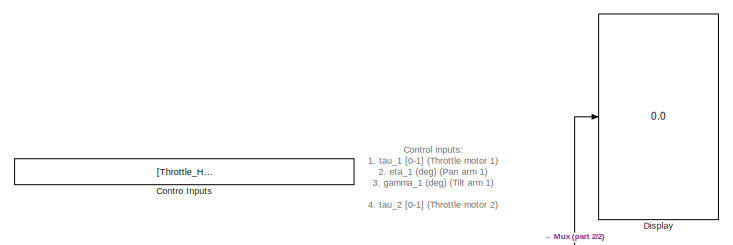
[diagram: root canvas - part 1/2, top left region]
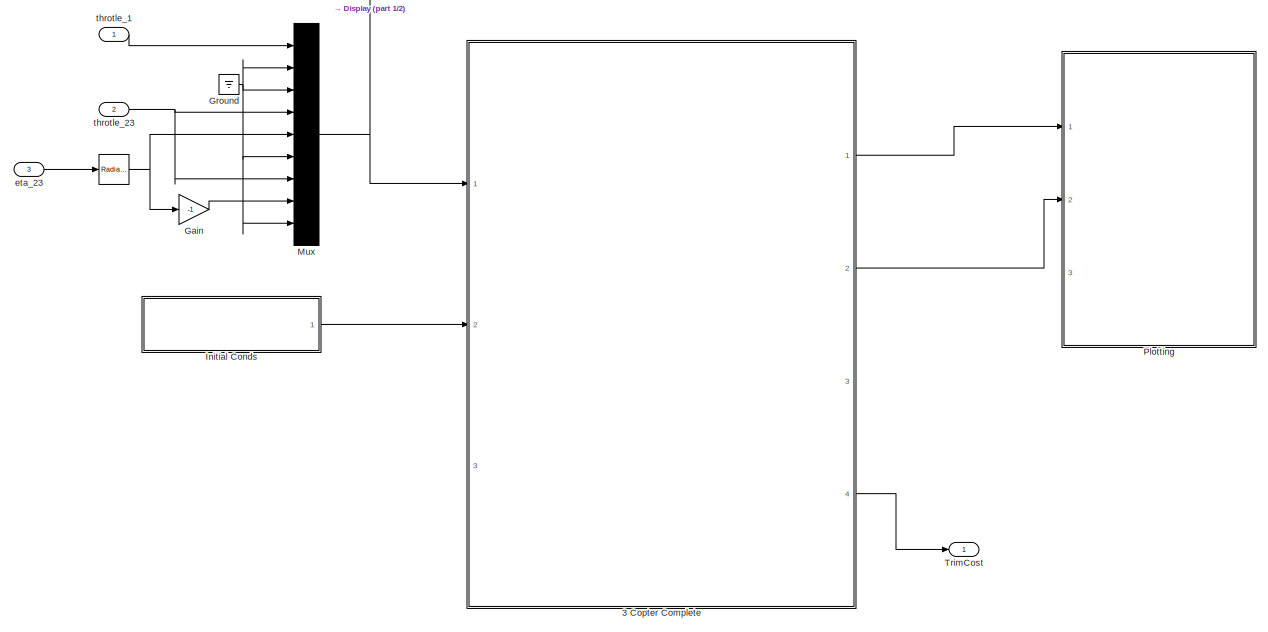
[diagram: root canvas - part 2/2, full width, middle band]
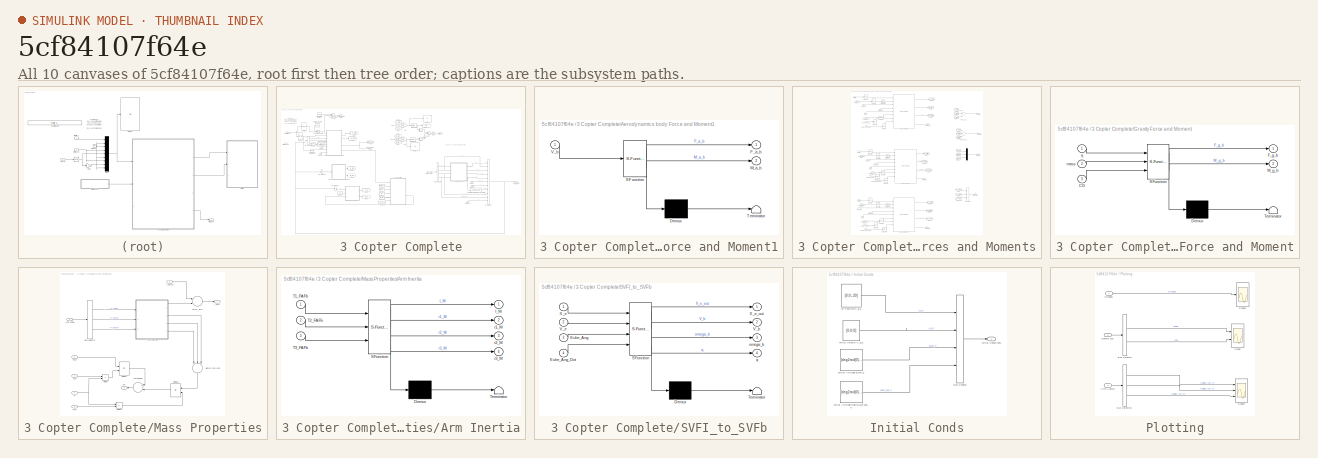
[diagram: thumbnail index - all 10 canvases of the model, root first then tree order]
MODEL slx_5cf84107f64e
KIND model
BLOCK [Reference]    REF=simulink_extras/Transformations/Radians
to Degrees
  Ports = [1, 1]
  SourceBlock = simulink_extras/Transformations/Radians\nto Degrees
  SourceType = RadiansToDegrees
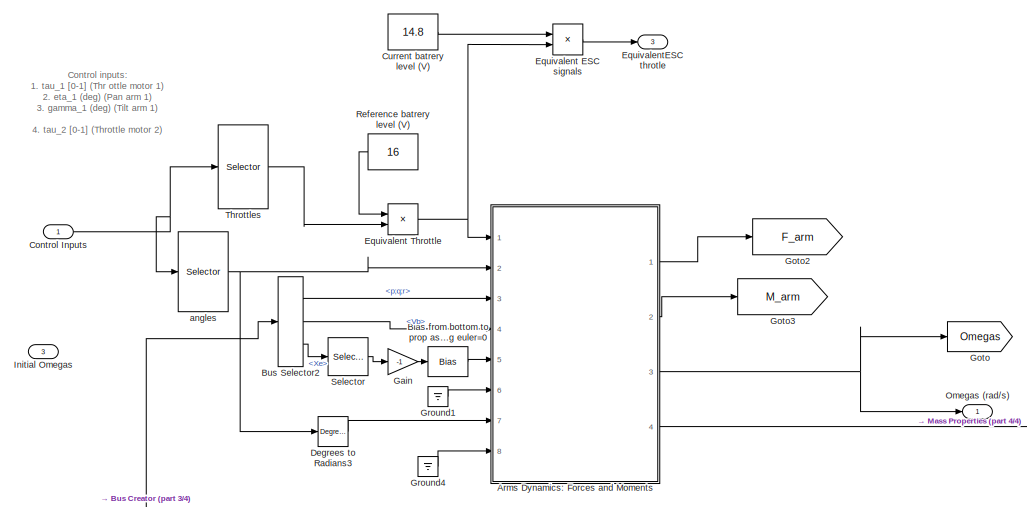
[diagram: 3 Copter Complete - part 1/4, top left region]
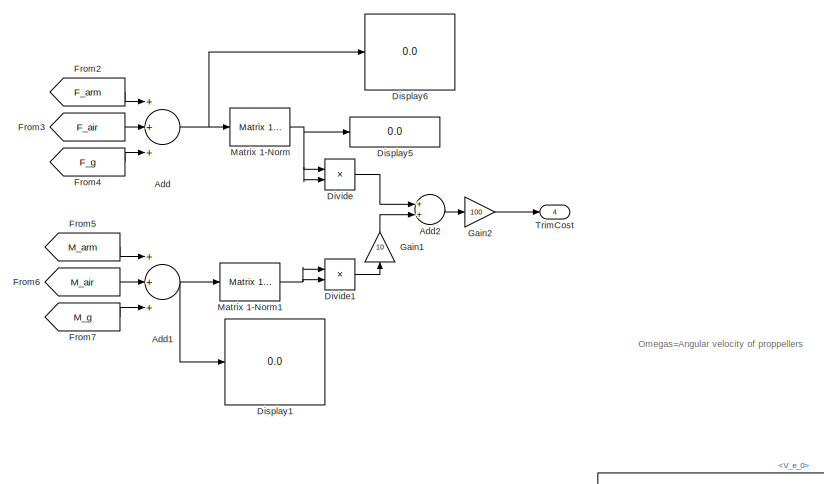
[diagram: 3 Copter Complete - part 2/4, top center region]
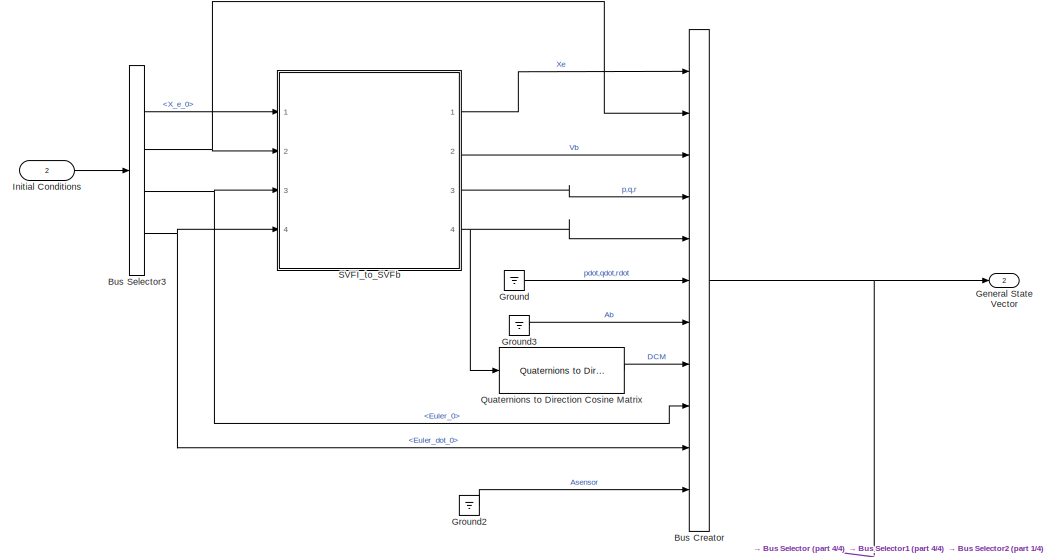
[diagram: 3 Copter Complete - part 3/4, middle right region]
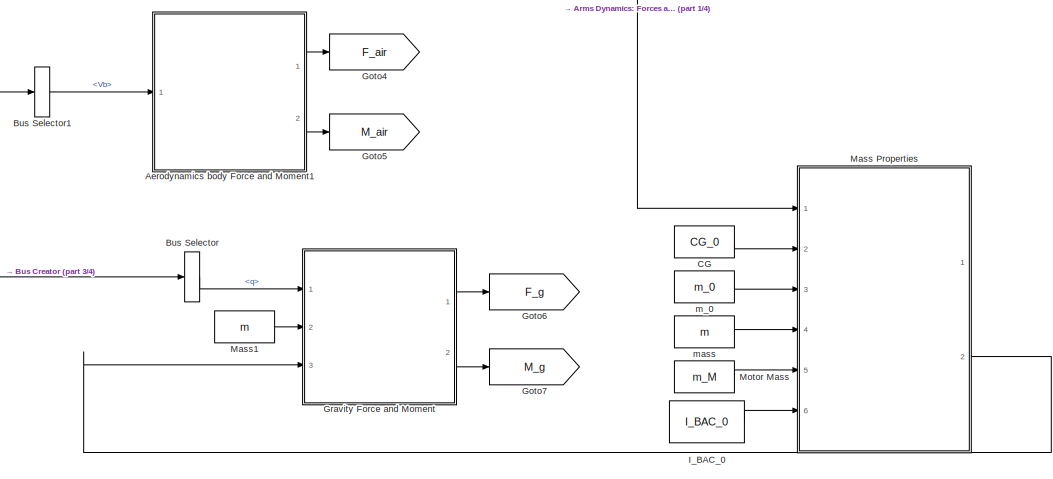
[diagram: 3 Copter Complete - part 4/4, central region]
BLOCK [SubSystem] 3 Copter Complete
  Ports = [3, 4]
  RequestExecContextInheritance = off
  TreatAsAtomicUnit = on
BLOCK [Sum] 3 Copter Complete/Add
  InputSameDT = off
  Inputs = +++
  OutDataTypeStr = Inherit: Inherit via internal rule
  Ports = [3, 1]
  SaturateOnIntegerOverflow = off
BLOCK [Sum] 3 Copter Complete/Add1
  InputSameDT = off
  Inputs = +++
  OutDataTypeStr = Inherit: Inherit via internal rule
  Ports = [3, 1]
  SaturateOnIntegerOverflow = off
BLOCK [Sum] 3 Copter Complete/Add2
  InputSameDT = off
  OutDataTypeStr = Inherit: Inherit via internal rule
  Ports = [2, 1]
  SaturateOnIntegerOverflow = off
BLOCK [SubSystem] 3 Copter Complete/Aerodynamics body Force and Moment1
  ErrorFcn = Stateflow.Translate.translate
  PermitHierarchicalResolution = ExplicitOnly
  Ports = [1, 2]
  RequestExecContextInheritance = off
  SFBlockType = MATLAB Function
  TreatAsAtomicUnit = on
BLOCK [Demux] 3 Copter Complete/Aerodynamics body Force and Moment1/ Demux 
  Outputs = 1
  Ports = [1, 1]
BLOCK [S-Function] 3 Copter Complete/Aerodynamics body Force and Moment1/ SFunction 
  EnableBusSupport = off
  FunctionName = sf_sfun
  Parameters = A_x,A_y,A_z,C_x,C_y,C_z,rho
  PortCounts = [1 3]
  Ports = [1, 3]
  Tag = Stateflow S-Function Trim_Model 5
BLOCK [Terminator] 3 Copter Complete/Aerodynamics body Force and Moment1/ Terminator 
BLOCK [Outport] 3 Copter Complete/Aerodynamics body Force and Moment1/F_a_b
  IconDisplay = Port number
BLOCK [Outport] 3 Copter Complete/Aerodynamics body Force and Moment1/M_a_b
  IconDisplay = Port number
  Port = 2
BLOCK [Inport] 3 Copter Complete/Aerodynamics body Force and Moment1/V_b
  IconDisplay = Port number
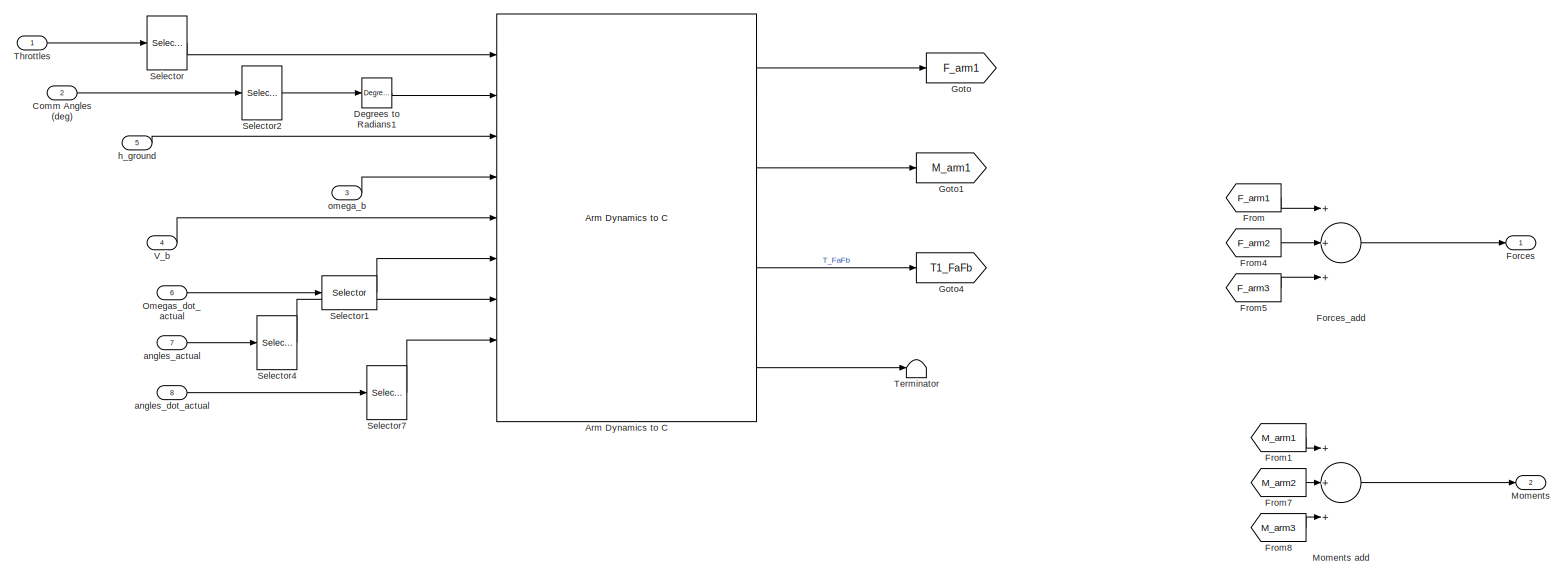
[diagram: 3 Copter Complete/Arms Dynamics: Forces and Moments - part 1/3, full width, top band]
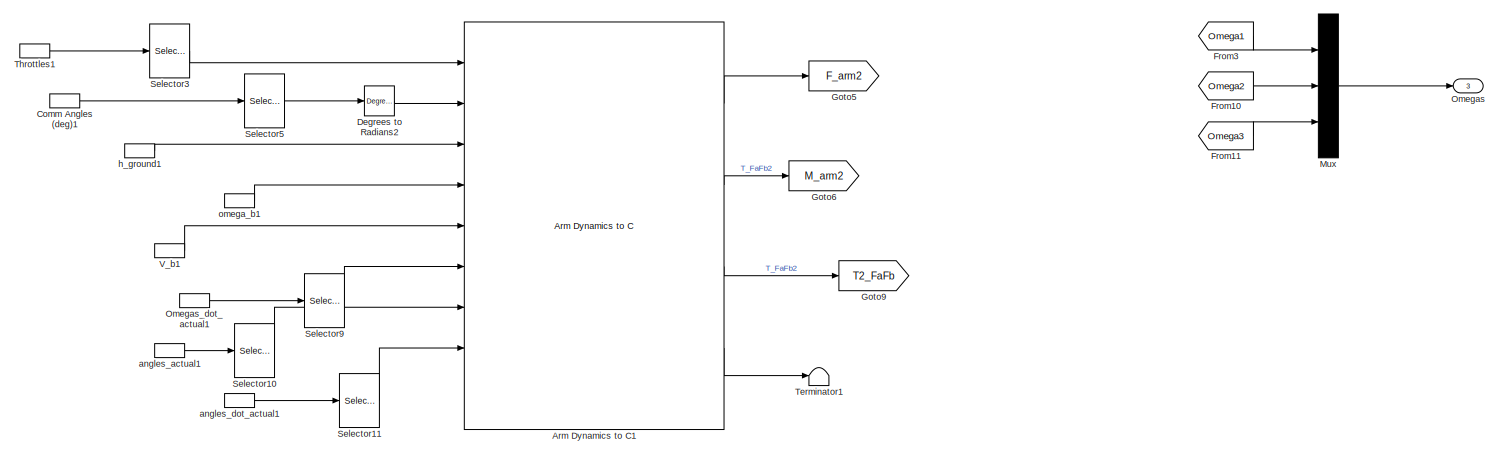
[diagram: 3 Copter Complete/Arms Dynamics: Forces and Moments - part 2/3, full width, middle band]
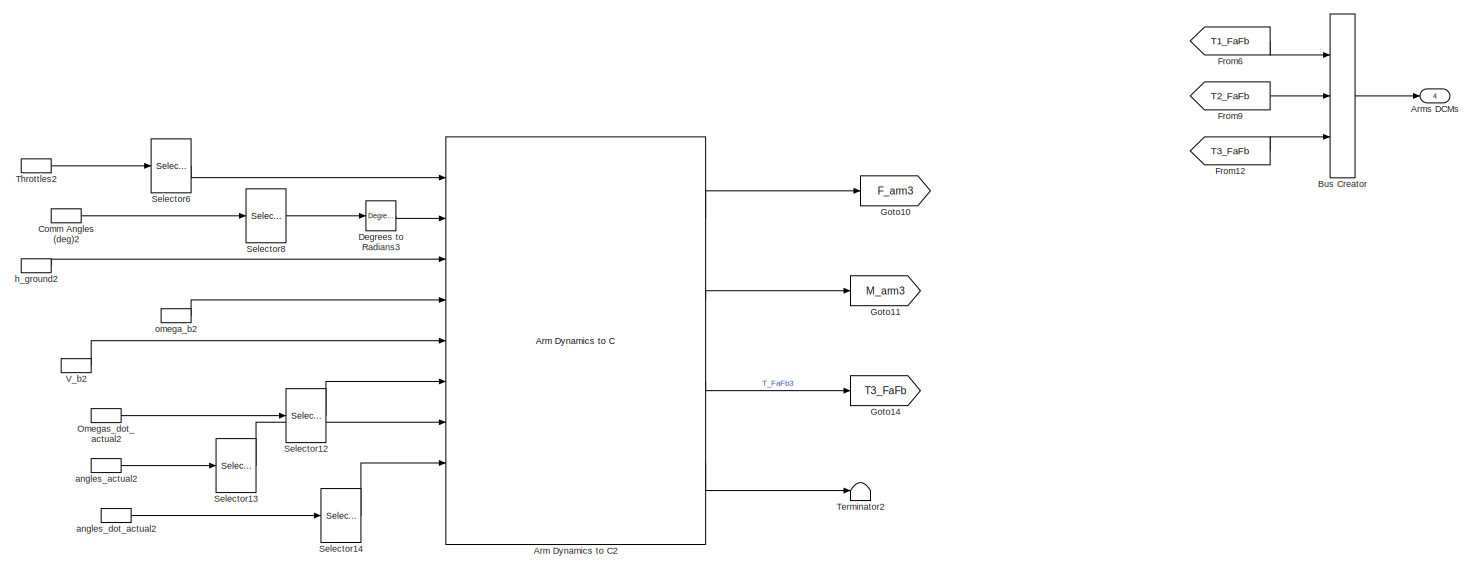
[diagram: 3 Copter Complete/Arms Dynamics: Forces and Moments - part 3/3, full width, bottom band]
BLOCK [SubSystem] 3 Copter Complete/Arms Dynamics: Forces and Moments
  Ports = [8, 4]
  RequestExecContextInheritance = off
BLOCK [Reference] 3 Copter Complete/Arms Dynamics: Forces and Moments/Arm Dynamics  to C  REF=XXCopter_C/Arm Dynamics  to C
  Arm_axis = [l_arm;0;0]
  J_FA = J_FA
  J_T = J_T
  Ports = [9, 4]
  Rot_sign = Rotation_sign(1)
  SourceBlock = XXCopter_C/Arm Dynamics  to C
  SourceType = Arm dynamics, kinematics, forces and moments
  arm_hub_pos = l*[1;0;0]
  arm_num = 1
  eta_dir = [1;0;0]
  eta_inf_lim = deg2rad(-180)
  eta_sup_lim = deg2rad(180)
  gamma_dir = [0;1;0]
  gamma_inf_lim = deg2rad(-90)
  gamma_sup_lim = deg2rad(30)
  h = h
  omega_n = 40
  switch_val = direct_feedforward
  xi = 0.8
BLOCK [Reference] 3 Copter Complete/Arms Dynamics: Forces and Moments/Arm Dynamics  to C1  REF=XXCopter_C/Arm Dynamics  to C
  Arm_axis = [0;l_arm;0]
  J_FA = J_FA
  J_T = J_T
  Ports = [9, 4]
  Rot_sign = Rotation_sign(2)
  SourceBlock = XXCopter_C/Arm Dynamics  to C
  SourceType = Arm dynamics, kinematics, forces and moments
  arm_hub_pos = l*[-1/2;sqrt(3)/2;0]
  arm_num = 2
  eta_dir = [0;1;0]
  eta_inf_lim = deg2rad(-180)
  eta_sup_lim = deg2rad(180)
  gamma_dir = [1;0;0]
  gamma_inf_lim = deg2rad(-30)
  gamma_sup_lim = deg2rad(90)
  h = h
  omega_n = 40
  switch_val = direct_feedforward
  xi = 0.8
BLOCK [Reference] 3 Copter Complete/Arms Dynamics: Forces and Moments/Arm Dynamics  to C2  REF=XXCopter_C/Arm Dynamics  to C
  Arm_axis = [0;-l_arm;0]
  J_FA = J_FA
  J_T = J_T
  Ports = [9, 4]
  Rot_sign = Rotation_sign(3)
  SourceBlock = XXCopter_C/Arm Dynamics  to C
  SourceType = Arm dynamics, kinematics, forces and moments
  arm_hub_pos = l*[-1/2;-sqrt(3)/2;0]
  arm_num = 3
  eta_dir = [0;1;0]
  eta_inf_lim = deg2rad(-180)
  eta_sup_lim = deg2rad(180)
  gamma_dir = [1;0;0]
  gamma_inf_lim = deg2rad(-90)
  gamma_sup_lim = deg2rad(30)
  h = h
  omega_n = 40
  switch_val = direct_feedforward
  xi = 0.8
BLOCK [Outport] 3 Copter Complete/Arms Dynamics: Forces and Moments/Arms DCMs
  IconDisplay = Port number
  Port = 4
BLOCK [BusCreator] 3 Copter Complete/Arms Dynamics: Forces and Moments/Bus Creator
  DisplayOption = bar
  Inputs = 3
  Ports = [3, 1]
BLOCK [Inport] 3 Copter Complete/Arms Dynamics: Forces and Moments/Comm Angles (deg)
  IconDisplay = Port number
  Port = 2
BLOCK [InportShadow] 3 Copter Complete/Arms Dynamics: Forces and Moments/Comm Angles (deg)1
  IconDisplay = Port number
  Port = 2
BLOCK [InportShadow] 3 Copter Complete/Arms Dynamics: Forces and Moments/Comm Angles (deg)2
  IconDisplay = Port number
  Port = 2
BLOCK [Reference] 3 Copter Complete/Arms Dynamics: Forces and Moments/Degrees to Radians1  REF=simulink_extras/Transformations/Degrees to
Radians
  Ports = [1, 1]
  SourceBlock = simulink_extras/Transformations/Degrees to\nRadians
  SourceType = DegreesToRadians
BLOCK [Reference] 3 Copter Complete/Arms Dynamics: Forces and Moments/Degrees to Radians2  REF=simulink_extras/Transformations/Degrees to
Radians
  Ports = [1, 1]
  SourceBlock = simulink_extras/Transformations/Degrees to\nRadians
  SourceType = DegreesToRadians
BLOCK [Reference] 3 Copter Complete/Arms Dynamics: Forces and Moments/Degrees to Radians3  REF=simulink_extras/Transformations/Degrees to
Radians
  Ports = [1, 1]
  SourceBlock = simulink_extras/Transformations/Degrees to\nRadians
  SourceType = DegreesToRadians
BLOCK [Outport] 3 Copter Complete/Arms Dynamics: Forces and Moments/Forces
  IconDisplay = Port number
BLOCK [Sum] 3 Copter Complete/Arms Dynamics: Forces and Moments/Forces_add
  InputSameDT = off
  Inputs = +++
  OutDataTypeStr = Inherit: Inherit via internal rule
  Ports = [3, 1]
  SaturateOnIntegerOverflow = off
BLOCK [From] 3 Copter Complete/Arms Dynamics: Forces and Moments/From
  GotoTag = F_arm1
BLOCK [From] 3 Copter Complete/Arms Dynamics: Forces and Moments/From1
  GotoTag = M_arm1
BLOCK [From] 3 Copter Complete/Arms Dynamics: Forces and Moments/From10
  GotoTag = Omega2
BLOCK [From] 3 Copter Complete/Arms Dynamics: Forces and Moments/From11
  GotoTag = Omega3
BLOCK [From] 3 Copter Complete/Arms Dynamics: Forces and Moments/From12
  GotoTag = T3_FaFb
BLOCK [From] 3 Copter Complete/Arms Dynamics: Forces and Moments/From3
  GotoTag = Omega1
BLOCK [From] 3 Copter Complete/Arms Dynamics: Forces and Moments/From4
  GotoTag = F_arm2
BLOCK [From] 3 Copter Complete/Arms Dynamics: Forces and Moments/From5
  GotoTag = F_arm3
BLOCK [From] 3 Copter Complete/Arms Dynamics: Forces and Moments/From6
  GotoTag = T1_FaFb
BLOCK [From] 3 Copter Complete/Arms Dynamics: Forces and Moments/From7
  GotoTag = M_arm2
BLOCK [From] 3 Copter Complete/Arms Dynamics: Forces and Moments/From8
  GotoTag = M_arm3
BLOCK [From] 3 Copter Complete/Arms Dynamics: Forces and Moments/From9
  GotoTag = T2_FaFb
BLOCK [Goto] 3 Copter Complete/Arms Dynamics: Forces and Moments/Goto
  GotoTag = F_arm1
BLOCK [Goto] 3 Copter Complete/Arms Dynamics: Forces and Moments/Goto1
  GotoTag = M_arm1
BLOCK [Goto] 3 Copter Complete/Arms Dynamics: Forces and Moments/Goto10
  GotoTag = F_arm3
BLOCK [Goto] 3 Copter Complete/Arms Dynamics: Forces and Moments/Goto11
  GotoTag = M_arm3
BLOCK [Goto] 3 Copter Complete/Arms Dynamics: Forces and Moments/Goto14
  GotoTag = T3_FaFb
BLOCK [Goto] 3 Copter Complete/Arms Dynamics: Forces and Moments/Goto4
  GotoTag = T1_FaFb
BLOCK [Goto] 3 Copter Complete/Arms Dynamics: Forces and Moments/Goto5
  GotoTag = F_arm2
BLOCK [Goto] 3 Copter Complete/Arms Dynamics: Forces and Moments/Goto6
  GotoTag = M_arm2
BLOCK [Goto] 3 Copter Complete/Arms Dynamics: Forces and Moments/Goto9
  GotoTag = T2_FaFb
BLOCK [Outport] 3 Copter Complete/Arms Dynamics: Forces and Moments/Moments
  IconDisplay = Port number
  Port = 2
BLOCK [Sum] 3 Copter Complete/Arms Dynamics: Forces and Moments/Moments add
  InputSameDT = off
  Inputs = +++
  OutDataTypeStr = Inherit: Inherit via internal rule
  Ports = [3, 1]
  SaturateOnIntegerOverflow = off
BLOCK [Mux] 3 Copter Complete/Arms Dynamics: Forces and Moments/Mux
  DisplayOption = bar
  Inputs = 3
  Ports = [3, 1]
BLOCK [Outport] 3 Copter Complete/Arms Dynamics: Forces and Moments/Omegas
  IconDisplay = Port number
  Port = 3
BLOCK [Inport] 3 Copter Complete/Arms Dynamics: Forces and Moments/Omegas_dot_actual
  IconDisplay = Port number
  Port = 6
BLOCK [InportShadow] 3 Copter Complete/Arms Dynamics: Forces and Moments/Omegas_dot_actual1
  IconDisplay = Port number
  Port = 6
BLOCK [InportShadow] 3 Copter Complete/Arms Dynamics: Forces and Moments/Omegas_dot_actual2
  IconDisplay = Port number
  Port = 6
BLOCK [Selector] 3 Copter Complete/Arms Dynamics: Forces and Moments/Selector
  IndexMode = Zero-based
  Indices = 0
  InputPortWidth = 3
  Ports = [1, 1]
BLOCK [Selector] 3 Copter Complete/Arms Dynamics: Forces and Moments/Selector1
  IndexMode = Zero-based
  Indices = 0
  InputPortWidth = 3
  Ports = [1, 1]
BLOCK [Selector] 3 Copter Complete/Arms Dynamics: Forces and Moments/Selector10
  IndexMode = Zero-based
  Indices = [2,3]
  InputPortWidth = 6
  Ports = [1, 1]
BLOCK [Selector] 3 Copter Complete/Arms Dynamics: Forces and Moments/Selector11
  IndexMode = Zero-based
  Indices = [2,3]
  InputPortWidth = 6
  Ports = [1, 1]
BLOCK [Selector] 3 Copter Complete/Arms Dynamics: Forces and Moments/Selector12
  IndexMode = Zero-based
  Indices = 2
  InputPortWidth = 3
  Ports = [1, 1]
BLOCK [Selector] 3 Copter Complete/Arms Dynamics: Forces and Moments/Selector13
  IndexMode = Zero-based
  Indices = [4,5]
  InputPortWidth = 6
  Ports = [1, 1]
BLOCK [Selector] 3 Copter Complete/Arms Dynamics: Forces and Moments/Selector14
  IndexMode = Zero-based
  Indices = [4,5]
  InputPortWidth = 6
  Ports = [1, 1]
BLOCK [Selector] 3 Copter Complete/Arms Dynamics: Forces and Moments/Selector2
  IndexMode = Zero-based
  Indices = [0,1]
  InputPortWidth = 6
  Ports = [1, 1]
BLOCK [Selector] 3 Copter Complete/Arms Dynamics: Forces and Moments/Selector3
  IndexMode = Zero-based
  InputPortWidth = 3
  Ports = [1, 1]
BLOCK [Selector] 3 Copter Complete/Arms Dynamics: Forces and Moments/Selector4
  IndexMode = Zero-based
  Indices = [0,1]
  InputPortWidth = 6
  Ports = [1, 1]
BLOCK [Selector] 3 Copter Complete/Arms Dynamics: Forces and Moments/Selector5
  IndexMode = Zero-based
  Indices = [2,3]
  InputPortWidth = 6
  Ports = [1, 1]
BLOCK [Selector] 3 Copter Complete/Arms Dynamics: Forces and Moments/Selector6
  IndexMode = Zero-based
  Indices = 2
  InputPortWidth = 3
  Ports = [1, 1]
BLOCK [Selector] 3 Copter Complete/Arms Dynamics: Forces and Moments/Selector7
  IndexMode = Zero-based
  Indices = [0,1]
  InputPortWidth = 6
  Ports = [1, 1]
BLOCK [Selector] 3 Copter Complete/Arms Dynamics: Forces and Moments/Selector8
  IndexMode = Zero-based
  Indices = [4,5]
  InputPortWidth = 6
  Ports = [1, 1]
BLOCK [Selector] 3 Copter Complete/Arms Dynamics: Forces and Moments/Selector9
  IndexMode = Zero-based
  InputPortWidth = 3
  Ports = [1, 1]
BLOCK [Terminator] 3 Copter Complete/Arms Dynamics: Forces and Moments/Terminator
BLOCK [Terminator] 3 Copter Complete/Arms Dynamics: Forces and Moments/Terminator1
BLOCK [Terminator] 3 Copter Complete/Arms Dynamics: Forces and Moments/Terminator2
BLOCK [Inport] 3 Copter Complete/Arms Dynamics: Forces and Moments/Throttles
  IconDisplay = Port number
BLOCK [InportShadow] 3 Copter Complete/Arms Dynamics: Forces and Moments/Throttles1
  IconDisplay = Port number
BLOCK [InportShadow] 3 Copter Complete/Arms Dynamics: Forces and Moments/Throttles2
  IconDisplay = Port number
BLOCK [Inport] 3 Copter Complete/Arms Dynamics: Forces and Moments/V_b
  IconDisplay = Port number
  Port = 4
BLOCK [InportShadow] 3 Copter Complete/Arms Dynamics: Forces and Moments/V_b1
  IconDisplay = Port number
  Port = 4
BLOCK [InportShadow] 3 Copter Complete/Arms Dynamics: Forces and Moments/V_b2
  IconDisplay = Port number
  Port = 4
BLOCK [Inport] 3 Copter Complete/Arms Dynamics: Forces and Moments/angles_actual
  IconDisplay = Port number
  Port = 7
BLOCK [InportShadow] 3 Copter Complete/Arms Dynamics: Forces and Moments/angles_actual1
  IconDisplay = Port number
  Port = 7
BLOCK [InportShadow] 3 Copter Complete/Arms Dynamics: Forces and Moments/angles_actual2
  IconDisplay = Port number
  Port = 7
BLOCK [Inport] 3 Copter Complete/Arms Dynamics: Forces and Moments/angles_dot_actual
  IconDisplay = Port number
  Port = 8
BLOCK [InportShadow] 3 Copter Complete/Arms Dynamics: Forces and Moments/angles_dot_actual1
  IconDisplay = Port number
  Port = 8
BLOCK [InportShadow] 3 Copter Complete/Arms Dynamics: Forces and Moments/angles_dot_actual2
  IconDisplay = Port number
  Port = 8
BLOCK [Inport] 3 Copter Complete/Arms Dynamics: Forces and Moments/h_ground
  IconDisplay = Port number
  Port = 5
BLOCK [InportShadow] 3 Copter Complete/Arms Dynamics: Forces and Moments/h_ground1
  IconDisplay = Port number
  Port = 5
BLOCK [InportShadow] 3 Copter Complete/Arms Dynamics: Forces and Moments/h_ground2
  IconDisplay = Port number
  Port = 5
BLOCK [Inport] 3 Copter Complete/Arms Dynamics: Forces and Moments/omega_b
  IconDisplay = Port number
  Port = 3
BLOCK [InportShadow] 3 Copter Complete/Arms Dynamics: Forces and Moments/omega_b1
  IconDisplay = Port number
  Port = 3
BLOCK [InportShadow] 3 Copter Complete/Arms Dynamics: Forces and Moments/omega_b2
  IconDisplay = Port number
  Port = 3
BLOCK [Bias] 3 Copter Complete/Bias from bottom to prop assuming euler=0
  Bias = 0.04+h
  SaturateOnIntegerOverflow = off
BLOCK [BusCreator] 3 Copter Complete/Bus Creator
  DisplayOption = bar
  Inputs = 11
  Ports = [11, 1]
BLOCK [BusSelector] 3 Copter Complete/Bus Selector
  OutputSignals = q
  Ports = [1, 1]
BLOCK [BusSelector] 3 Copter Complete/Bus Selector1
  OutputSignals = Vb
  Ports = [1, 1]
BLOCK [BusSelector] 3 Copter Complete/Bus Selector2
  OutputSignals = p;q;r,Vb,Xe
  Ports = [1, 3]
BLOCK [BusSelector] 3 Copter Complete/Bus Selector3
  OutputSignals = X_e_0,V_e_0,Euler_0,Euler_dot_0
  Ports = [1, 4]
BLOCK [Constant] 3 Copter Complete/CG
  Value = CG_0
BLOCK [Inport] 3 Copter Complete/Control Inputs
  IconDisplay = Port number
BLOCK [Constant] 3 Copter Complete/Current batrery level (V)
  Value = 14.8
BLOCK [Reference] 3 Copter Complete/Degrees to Radians3  REF=simulink_extras/Transformations/Degrees to
Radians
  Ports = [1, 1]
  SourceBlock = simulink_extras/Transformations/Degrees to\nRadians
  SourceType = DegreesToRadians
BLOCK [Display] 3 Copter Complete/Display1
  Decimation = 1
  Ports = [1]
BLOCK [Display] 3 Copter Complete/Display5
  Decimation = 1
  Ports = [1]
BLOCK [Display] 3 Copter Complete/Display6
  Decimation = 1
  Ports = [1]
BLOCK [Product] 3 Copter Complete/Divide
  InputSameDT = off
  Inputs = **
  OutDataTypeStr = Inherit: Inherit via internal rule
  Ports = [2, 1]
  RndMeth = Floor
  SaturateOnIntegerOverflow = off
BLOCK [Product] 3 Copter Complete/Divide1
  InputSameDT = off
  Inputs = **
  OutDataTypeStr = Inherit: Inherit via internal rule
  Ports = [2, 1]
  RndMeth = Floor
  SaturateOnIntegerOverflow = off
BLOCK [Product] 3 Copter Complete/Equivalent ESC signals
  InputSameDT = off
  Inputs = /*
  OutDataTypeStr = Inherit: Inherit via internal rule
  Ports = [2, 1]
  RndMeth = Floor
  SaturateOnIntegerOverflow = off
BLOCK [Product] 3 Copter Complete/Equivalent Throttle
  InputSameDT = off
  Inputs = **
  OutDataTypeStr = Inherit: Inherit via internal rule
  Ports = [2, 1]
  RndMeth = Floor
  SaturateOnIntegerOverflow = off
BLOCK [Outport] 3 Copter Complete/EquivalentESC throtle
  IconDisplay = Port number
  Port = 3
BLOCK [From] 3 Copter Complete/From2
  GotoTag = F_arm
BLOCK [From] 3 Copter Complete/From3
  GotoTag = F_air
BLOCK [From] 3 Copter Complete/From4
  GotoTag = F_g
BLOCK [From] 3 Copter Complete/From5
  GotoTag = M_arm
BLOCK [From] 3 Copter Complete/From6
  GotoTag = M_air
BLOCK [From] 3 Copter Complete/From7
  GotoTag = M_g
BLOCK [Gain] 3 Copter Complete/Gain
  Gain = -1
  OutDataTypeStr = Inherit: Inherit via internal rule
  ParamDataTypeStr = Inherit: Inherit via internal rule
  SaturateOnIntegerOverflow = off
BLOCK [Gain] 3 Copter Complete/Gain1
  Gain = 10
  OutDataTypeStr = Inherit: Inherit via internal rule
  ParamDataTypeStr = Inherit: Inherit via internal rule
  SaturateOnIntegerOverflow = off
BLOCK [Gain] 3 Copter Complete/Gain2
  Gain = 100
  OutDataTypeStr = Inherit: Inherit via internal rule
  ParamDataTypeStr = Inherit: Inherit via internal rule
  SaturateOnIntegerOverflow = off
BLOCK [Outport] 3 Copter Complete/General State Vector
  IconDisplay = Port number
  Port = 2
BLOCK [Goto] 3 Copter Complete/Goto
  GotoTag = Omegas
BLOCK [Goto] 3 Copter Complete/Goto2
  GotoTag = F_arm
BLOCK [Goto] 3 Copter Complete/Goto3
  GotoTag = M_arm
BLOCK [Goto] 3 Copter Complete/Goto4
  GotoTag = F_air
BLOCK [Goto] 3 Copter Complete/Goto5
  GotoTag = M_air
BLOCK [Goto] 3 Copter Complete/Goto6
  GotoTag = F_g
BLOCK [Goto] 3 Copter Complete/Goto7
  GotoTag = M_g
BLOCK [SubSystem] 3 Copter Complete/Gravity Force and Moment
  ErrorFcn = Stateflow.Translate.translate
  PermitHierarchicalResolution = ExplicitOnly
  Ports = [3, 2]
  RequestExecContextInheritance = off
  SFBlockType = MATLAB Function
  TreatAsAtomicUnit = on
BLOCK [Demux] 3 Copter Complete/Gravity Force and Moment/ Demux 
  Outputs = 1
  Ports = [1, 1]
BLOCK [S-Function] 3 Copter Complete/Gravity Force and Moment/ SFunction 
  EnableBusSupport = off
  FunctionName = sf_sfun
  Parameters = g
  PortCounts = [3 3]
  Ports = [3, 3]
  Tag = Stateflow S-Function Trim_Model 4
BLOCK [Terminator] 3 Copter Complete/Gravity Force and Moment/ Terminator 
BLOCK [Inport] 3 Copter Complete/Gravity Force and Moment/CG
  IconDisplay = Port number
  Port = 3
BLOCK [Outport] 3 Copter Complete/Gravity Force and Moment/F_g_b
  IconDisplay = Port number
BLOCK [Outport] 3 Copter Complete/Gravity Force and Moment/M_g_b
  IconDisplay = Port number
  Port = 2
BLOCK [Inport] 3 Copter Complete/Gravity Force and Moment/mass
  IconDisplay = Port number
  Port = 2
BLOCK [Inport] 3 Copter Complete/Gravity Force and Moment/q
  IconDisplay = Port number
BLOCK [Ground] 3 Copter Complete/Ground
BLOCK [Ground] 3 Copter Complete/Ground1
BLOCK [Ground] 3 Copter Complete/Ground2
BLOCK [Ground] 3 Copter Complete/Ground3
BLOCK [Ground] 3 Copter Complete/Ground4
BLOCK [Constant] 3 Copter Complete/I_BAC_0
  Value = I_BAC_0
BLOCK [Inport] 3 Copter Complete/Initial Conditions
  IconDisplay = Port number
  Port = 2
BLOCK [Inport] 3 Copter Complete/Initial Omegas
  IconDisplay = Port number
  Port = 3
BLOCK [SubSystem] 3 Copter Complete/Mass Properties
  Ports = [6, 2]
  RequestExecContextInheritance = off
  TreatAsAtomicUnit = on
BLOCK [SubSystem] 3 Copter Complete/Mass Properties/Arm Inertia
  ErrorFcn = Stateflow.Translate.translate
  PermitHierarchicalResolution = ExplicitOnly
  Ports = [3, 4]
  RequestExecContextInheritance = off
  SFBlockType = MATLAB Function
  TreatAsAtomicUnit = on
BLOCK [Demux] 3 Copter Complete/Mass Properties/Arm Inertia/ Demux 
  Outputs = 1
  Ports = [1, 1]
BLOCK [S-Function] 3 Copter Complete/Mass Properties/Arm Inertia/ SFunction 
  EnableBusSupport = off
  FunctionName = sf_sfun
  Parameters = h_M,l,m_M
  PortCounts = [3 5]
  Ports = [3, 5]
  Tag = Stateflow S-Function Trim_Model 13
BLOCK [Terminator] 3 Copter Complete/Mass Properties/Arm Inertia/ Terminator 
BLOCK [Outport] 3 Copter Complete/Mass Properties/Arm Inertia/I_M
  IconDisplay = Port number
BLOCK [Inport] 3 Copter Complete/Mass Properties/Arm Inertia/T1_FAFb
  IconDisplay = Port number
BLOCK [Inport] 3 Copter Complete/Mass Properties/Arm Inertia/T2_FAFb
  IconDisplay = Port number
  Port = 2
BLOCK [Inport] 3 Copter Complete/Mass Properties/Arm Inertia/T3_FAFb
  IconDisplay = Port number
  Port = 3
BLOCK [Outport] 3 Copter Complete/Mass Properties/Arm Inertia/r1_M
  IconDisplay = Port number
  Port = 2
BLOCK [Outport] 3 Copter Complete/Mass Properties/Arm Inertia/r2_M
  IconDisplay = Port number
  Port = 3
BLOCK [Outport] 3 Copter Complete/Mass Properties/Arm Inertia/r3_M
  IconDisplay = Port number
  Port = 4
BLOCK [Inport] 3 Copter Complete/Mass Properties/Arms DCMs
  IconDisplay = Port number
BLOCK [BusSelector] 3 Copter Complete/Mass Properties/Bus Selector
  OutputSignals = T_FaFb,T_FaFb2,T_FaFb3
  Ports = [1, 3]
BLOCK [Outport] 3 Copter Complete/Mass Properties/CG
  IconDisplay = Port number
  Port = 2
BLOCK [Sum] 3 Copter Complete/Mass Properties/CG position
  InputSameDT = off
  OutDataTypeStr = Inherit: Inherit via internal rule
  Ports = [2, 1]
  SaturateOnIntegerOverflow = off
BLOCK [Inport] 3 Copter Complete/Mass Properties/CG_0
  IconDisplay = Port number
  Port = 2
BLOCK [Product] 3 Copter Complete/Mass Properties/Divide
  InputSameDT = off
  Inputs = */
  OutDataTypeStr = Inherit: Inherit via internal rule
  Ports = [2, 1]
  RndMeth = Floor
  SaturateOnIntegerOverflow = off
BLOCK [Product] 3 Copter Complete/Mass Properties/Divide1
  InputSameDT = off
  Inputs = **
  OutDataTypeStr = Inherit: Inherit via internal rule
  Ports = [2, 1]
  RndMeth = Floor
  SaturateOnIntegerOverflow = off
BLOCK [Product] 3 Copter Complete/Mass Properties/Divide2
  InputSameDT = off
  Inputs = /*
  OutDataTypeStr = Inherit: Inherit via internal rule
  Ports = [2, 1]
  RndMeth = Floor
  SaturateOnIntegerOverflow = off
BLOCK [Product] 3 Copter Complete/Mass Properties/Divide3
  InputSameDT = off
  Inputs = **
  OutDataTypeStr = Inherit: Inherit via internal rule
  Ports = [2, 1]
  RndMeth = Floor
  SaturateOnIntegerOverflow = off
BLOCK [Outport] 3 Copter Complete/Mass Properties/I_BAC
  IconDisplay = Port number
BLOCK [Inport] 3 Copter Complete/Mass Properties/I_BAC_0
  IconDisplay = Port number
  Port = 6
BLOCK [Sum] 3 Copter Complete/Mass Properties/Motors Pos sum
  InputSameDT = off
  Inputs = +++
  OutDataTypeStr = Inherit: Inherit via internal rule
  Ports = [3, 1]
  SaturateOnIntegerOverflow = off
BLOCK [Sum] 3 Copter Complete/Mass Properties/Total I_BAC
  InputSameDT = off
  OutDataTypeStr = Inherit: Inherit via internal rule
  Ports = [2, 1]
  SaturateOnIntegerOverflow = off
BLOCK [Inport] 3 Copter Complete/Mass Properties/m
  IconDisplay = Port number
  Port = 4
BLOCK [Inport] 3 Copter Complete/Mass Properties/m_0
  IconDisplay = Port number
  Port = 3
BLOCK [Inport] 3 Copter Complete/Mass Properties/m_M
  IconDisplay = Port number
  Port = 5
BLOCK [Constant] 3 Copter Complete/Mass1
  Value = m
BLOCK [Reference] 3 Copter Complete/Matrix  1-Norm  REF=dspmtrx3/Matrix 
1-Norm
  LockScale = off
  Ports = [1, 1]
  SourceBlock = dspmtrx3/Matrix \n1-Norm
  SourceType = Matrix 1-Norm
  accumDataTypeStr = Inherit: Inherit via internal rule
  accumFracLength = 30
  accumLastDataTypeStr = Inherit: Inherit via internal rule
  accumMode = Inherit via internal rule
  accumWordLength = 32
  allowOverrides = on
  outputDataTypeStr = Inherit: Same as accumulator
  outputFracLength = 15
  outputLastDataTypeStr = Inherit: Same as accumulator
  outputMax = []
  outputMin = []
  outputMode = Same as accumulator
  outputWordLength = 16
  overflowMode = off
  roundingMode = Floor
BLOCK [Reference] 3 Copter Complete/Matrix  1-Norm1  REF=dspmtrx3/Matrix 
1-Norm
  LockScale = off
  Ports = [1, 1]
  SourceBlock = dspmtrx3/Matrix \n1-Norm
  SourceType = Matrix 1-Norm
  accumDataTypeStr = Inherit: Inherit via internal rule
  accumFracLength = 30
  accumLastDataTypeStr = Inherit: Inherit via internal rule
  accumMode = Inherit via internal rule
  accumWordLength = 32
  allowOverrides = on
  outputDataTypeStr = Inherit: Same as accumulator
  outputFracLength = 15
  outputLastDataTypeStr = Inherit: Same as accumulator
  outputMax = []
  outputMin = []
  outputMode = Same as accumulator
  outputWordLength = 16
  overflowMode = off
  roundingMode = Floor
BLOCK [Constant] 3 Copter Complete/Motor Mass
  Value = m_M
BLOCK [Outport] 3 Copter Complete/Omegas (rad//s)
  IconDisplay = Port number
BLOCK [Reference] 3 Copter Complete/Quaternions to  Direction Cosine Matrix  REF=aerolibtransform2/Quaternions to 
Direction Cosine Matrix
  Ports = [1, 1]
  SourceBlock = aerolibtransform2/Quaternions to \nDirection Cosine Matrix
  SourceType = Quaternion2DCM
BLOCK [Constant] 3 Copter Complete/Reference batrery level (V)
  Value = 16
BLOCK [SubSystem] 3 Copter Complete/SVFI_to_SVFb
  ErrorFcn = Stateflow.Translate.translate
  PermitHierarchicalResolution = ExplicitOnly
  Ports = [4, 4]
  RequestExecContextInheritance = off
  SFBlockType = MATLAB Function
  TreatAsAtomicUnit = on
BLOCK [Demux] 3 Copter Complete/SVFI_to_SVFb/ Demux 
  Outputs = 1
  Ports = [1, 1]
BLOCK [S-Function] 3 Copter Complete/SVFI_to_SVFb/ SFunction 
  EnableBusSupport = off
  FunctionName = sf_sfun
  PortCounts = [4 5]
  Ports = [4, 5]
  Tag = Stateflow S-Function Trim_Model 16
BLOCK [Terminator] 3 Copter Complete/SVFI_to_SVFb/ Terminator 
BLOCK [Inport] 3 Copter Complete/SVFI_to_SVFb/Euler_Ang
  IconDisplay = Port number
  Port = 3
BLOCK [Inport] 3 Copter Complete/SVFI_to_SVFb/Euler_Ang_Dot
  IconDisplay = Port number
  Port = 4
BLOCK [Outport] 3 Copter Complete/SVFI_to_SVFb/V_b
  IconDisplay = Port number
  Port = 2
BLOCK [Inport] 3 Copter Complete/SVFI_to_SVFb/V_e
  IconDisplay = Port number
  Port = 2
BLOCK [Inport] 3 Copter Complete/SVFI_to_SVFb/X_e
  IconDisplay = Port number
BLOCK [Outport] 3 Copter Complete/SVFI_to_SVFb/X_e_out
  IconDisplay = Port number
BLOCK [Outport] 3 Copter Complete/SVFI_to_SVFb/omega_b
  IconDisplay = Port number
  Port = 3
BLOCK [Outport] 3 Copter Complete/SVFI_to_SVFb/q
  IconDisplay = Port number
  Port = 4
BLOCK [Selector] 3 Copter Complete/Selector
  Indices = 3
  InputPortWidth = 3
  Ports = [1, 1]
BLOCK [Selector] 3 Copter Complete/Throttles
  Indices = [1,4,7]
  InputPortWidth = 9
  Ports = [1, 1]
BLOCK [Outport] 3 Copter Complete/TrimCost
  IconDisplay = Port number
  Port = 4
BLOCK [Selector] 3 Copter Complete/angles 
  Indices = [2,3,5,6,8,9]
  InputPortWidth = 9
  Ports = [1, 1]
BLOCK [Constant] 3 Copter Complete/m_0
  Value = m_0
BLOCK [Constant] 3 Copter Complete/mass
  Value = m
BLOCK [Constant] Contro Inputs
  Commented = on
  Value = [Throttle_Hover, 0,0,Throttle_Hover,0,0,Throttle_Hover,0,0]
BLOCK [Display] Display
  Decimation = 1
  Ports = [1]
BLOCK [Gain] Gain
  Gain = -1
  OutDataTypeStr = Inherit: Inherit via internal rule
  ParamDataTypeStr = Inherit: Inherit via internal rule
  SaturateOnIntegerOverflow = off
BLOCK [Ground] Ground
BLOCK [SubSystem] Initial Conds
  Ports = [0, 1]
  RequestExecContextInheritance = off
  TreatAsAtomicUnit = on
BLOCK [BusCreator] Initial Conds/Bus Creator
  DisplayOption = bar
  Ports = [4, 1]
BLOCK [Constant] Initial Conds/Ini Position X_e_0
  Value = [0;0;-20]
BLOCK [Constant] Initial Conds/Initial Attitude Euler_0
  Value = [deg2rad(0);deg2rad(0);deg2rad(0)]
BLOCK [Constant] Initial Conds/Initial Attitude Rate  Euler_dot_0
  Value = [deg2rad(0);deg2rad(0);deg2rad(0)]
BLOCK [Outport] Initial Conds/Initial Conditions
  IconDisplay = Port number
BLOCK [Constant] Initial Conds/Initial Velocity V_e_0
  Value = [0;0;0]
BLOCK [Mux] Mux
  DisplayOption = bar
  Inputs = 9
  Ports = [9, 1]
BLOCK [SubSystem] Plotting
  Commented = on
  Ports = [3]
  RequestExecContextInheritance = off
BLOCK [Inport] Plotting/Arms Angles
  IconDisplay = Port number
  Port = 3
BLOCK [BusSelector] Plotting/Bus Selector
  OutputSignals = euler,Xe
  Ports = [1, 2]
BLOCK [BusSelector] Plotting/Bus Selector1
  OutputSignals = Angles Arm 1,Angles Arm 2,Angles Arm 3
  Ports = [1, 3]
BLOCK [Inport] Plotting/General bus
  IconDisplay = Port number
  Port = 2
BLOCK [Inport] Plotting/Omegas
  IconDisplay = Port number
BLOCK [Scope] Plotting/Scope
  DataFormat = StructureWithTime
  Floating = off
  NumInputPorts = 2
  Ports = [2]
  SampleTime = 0
  ShowLegends = off
  YMax = 3.5~40
  YMin = -3.5~-110
BLOCK [Scope] Plotting/Scope1
  DataFormat = StructureWithTime
  Floating = off
  NumInputPorts = 1
  Ports = [1]
  SampleTime = 0
  SaveName = ScopeData1
  ShowLegends = off
  TimeRange = 5
  YMax = 700
  YMin = 0
  ZoomMode = yonly
BLOCK [Scope] Plotting/Scope2
  DataFormat = StructureWithTime
  Floating = off
  NumInputPorts = 3
  Ports = [3]
  SampleTime = 0
  SaveName = ScopeData2
  ShowLegends = on
  YMax = 5~5~5
  YMin = -5~-5~-5
BLOCK [Outport] TrimCost
  IconDisplay = Port number
BLOCK [Inport] eta_23
  IconDisplay = Port number
  Port = 3
BLOCK [Inport] throtle_1
  IconDisplay = Port number
BLOCK [Inport] throtle_23
  IconDisplay = Port number
  Port = 2
ANNOTATION (root): Control inputs: 1. tau_1 [0-1] (Throttle motor 1) 2. eta_1 (deg) (Pan arm 1) 3. gamma_1 (deg) (Tilt arm 1) 4. tau_2 [0-1] (Throttle motor 2) 5. eta_2 (deg) (Pan arm 2) 6. gamma_2 (deg) (Tilt arm 2) 7. tau_3 [0-1] (Throttle motor 3) 8. eta_3 (deg) (Pan arm 3) 9. gamma_3 (deg) (Tilt arm 3)
ANNOTATION 3 Copter Complete: Control inputs: 1. tau_1 [0-1] (Thr ottle motor 1) 2. eta_1 (deg) (Pan arm 1) 3. gamma_1 (deg) (Tilt arm 1) 4. tau_2 [0-1] (Throttle motor 2) 5. eta_2 (deg) (Pan arm 2) 6. gamma_2 (deg) (Tilt arm 2) 7. tau_3 [0-1] (Throttle motor 3) 8. eta_3 (deg) (Pan arm 3) 9. gamma_3 (deg) (Tilt arm 3)
ANNOTATION 3 Copter Complete: Omegas=Angular velocity of proppellers
NET  :1 -> Gain:1, Mux:5
NET 3 Copter Complete/Add1:1 -> 3 Copter Complete/Display1:1, 3 Copter Complete/Matrix  1-Norm1:1
LINE 3 Copter Complete/Add2:1 -> 3 Copter Complete/Gain2:1
NET 3 Copter Complete/Add:1 -> 3 Copter Complete/Display6:1, 3 Copter Complete/Matrix  1-Norm:1
LINE 3 Copter Complete/Aerodynamics body Force and Moment1:1 -> 3 Copter Complete/Goto4:1
LINE 3 Copter Complete/Aerodynamics body Force and Moment1:2 -> 3 Copter Complete/Goto5:1
LINE 3 Copter Complete/Arms Dynamics: Forces and Moments/Arm Dynamics  to C1:1 -> 3 Copter Complete/Arms Dynamics: Forces and Moments/Goto5:1
LINE 3 Copter Complete/Arms Dynamics: Forces and Moments/Arm Dynamics  to C1:2 -> 3 Copter Complete/Arms Dynamics: Forces and Moments/Goto6:1
LINE 3 Copter Complete/Arms Dynamics: Forces and Moments/Arm Dynamics  to C1:3 -> 3 Copter Complete/Arms Dynamics: Forces and Moments/Goto9:1
LINE 3 Copter Complete/Arms Dynamics: Forces and Moments/Arm Dynamics  to C1:4 -> 3 Copter Complete/Arms Dynamics: Forces and Moments/Terminator1:1
LINE 3 Copter Complete/Arms Dynamics: Forces and Moments/Arm Dynamics  to C2:1 -> 3 Copter Complete/Arms Dynamics: Forces and Moments/Goto10:1
LINE 3 Copter Complete/Arms Dynamics: Forces and Moments/Arm Dynamics  to C2:2 -> 3 Copter Complete/Arms Dynamics: Forces and Moments/Goto11:1
LINE 3 Copter Complete/Arms Dynamics: Forces and Moments/Arm Dynamics  to C2:3 -> 3 Copter Complete/Arms Dynamics: Forces and Moments/Goto14:1
LINE 3 Copter Complete/Arms Dynamics: Forces and Moments/Arm Dynamics  to C2:4 -> 3 Copter Complete/Arms Dynamics: Forces and Moments/Terminator2:1
LINE 3 Copter Complete/Arms Dynamics: Forces and Moments/Arm Dynamics  to C:1 -> 3 Copter Complete/Arms Dynamics: Forces and Moments/Goto:1
LINE 3 Copter Complete/Arms Dynamics: Forces and Moments/Arm Dynamics  to C:2 -> 3 Copter Complete/Arms Dynamics: Forces and Moments/Goto1:1
LINE 3 Copter Complete/Arms Dynamics: Forces and Moments/Arm Dynamics  to C:3 -> 3 Copter Complete/Arms Dynamics: Forces and Moments/Goto4:1
LINE 3 Copter Complete/Arms Dynamics: Forces and Moments/Arm Dynamics  to C:4 -> 3 Copter Complete/Arms Dynamics: Forces and Moments/Terminator:1
LINE 3 Copter Complete/Arms Dynamics: Forces and Moments/Bus Creator:1 -> 3 Copter Complete/Arms Dynamics: Forces and Moments/Arms DCMs:1
LINE 3 Copter Complete/Arms Dynamics: Forces and Moments/Comm Angles (deg)1:1 -> 3 Copter Complete/Arms Dynamics: Forces and Moments/Selector5:1
LINE 3 Copter Complete/Arms Dynamics: Forces and Moments/Comm Angles (deg)2:1 -> 3 Copter Complete/Arms Dynamics: Forces and Moments/Selector8:1
LINE 3 Copter Complete/Arms Dynamics: Forces and Moments/Comm Angles (deg):1 -> 3 Copter Complete/Arms Dynamics: Forces and Moments/Selector2:1
LINE 3 Copter Complete/Arms Dynamics: Forces and Moments/Degrees to Radians1:1 -> 3 Copter Complete/Arms Dynamics: Forces and Moments/Arm Dynamics  to C:2
LINE 3 Copter Complete/Arms Dynamics: Forces and Moments/Degrees to Radians2:1 -> 3 Copter Complete/Arms Dynamics: Forces and Moments/Arm Dynamics  to C1:2
LINE 3 Copter Complete/Arms Dynamics: Forces and Moments/Degrees to Radians3:1 -> 3 Copter Complete/Arms Dynamics: Forces and Moments/Arm Dynamics  to C2:2
LINE 3 Copter Complete/Arms Dynamics: Forces and Moments/Forces_add:1 -> 3 Copter Complete/Arms Dynamics: Forces and Moments/Forces:1
LINE 3 Copter Complete/Arms Dynamics: Forces and Moments/From10:1 -> 3 Copter Complete/Arms Dynamics: Forces and Moments/Mux:2
LINE 3 Copter Complete/Arms Dynamics: Forces and Moments/From11:1 -> 3 Copter Complete/Arms Dynamics: Forces and Moments/Mux:3
LINE 3 Copter Complete/Arms Dynamics: Forces and Moments/From12:1 -> 3 Copter Complete/Arms Dynamics: Forces and Moments/Bus Creator:3
LINE 3 Copter Complete/Arms Dynamics: Forces and Moments/From1:1 -> 3 Copter Complete/Arms Dynamics: Forces and Moments/Moments add:1
LINE 3 Copter Complete/Arms Dynamics: Forces and Moments/From3:1 -> 3 Copter Complete/Arms Dynamics: Forces and Moments/Mux:1
LINE 3 Copter Complete/Arms Dynamics: Forces and Moments/From4:1 -> 3 Copter Complete/Arms Dynamics: Forces and Moments/Forces_add:2
LINE 3 Copter Complete/Arms Dynamics: Forces and Moments/From5:1 -> 3 Copter Complete/Arms Dynamics: Forces and Moments/Forces_add:3
LINE 3 Copter Complete/Arms Dynamics: Forces and Moments/From6:1 -> 3 Copter Complete/Arms Dynamics: Forces and Moments/Bus Creator:1
LINE 3 Copter Complete/Arms Dynamics: Forces and Moments/From7:1 -> 3 Copter Complete/Arms Dynamics: Forces and Moments/Moments add:2
LINE 3 Copter Complete/Arms Dynamics: Forces and Moments/From8:1 -> 3 Copter Complete/Arms Dynamics: Forces and Moments/Moments add:3
LINE 3 Copter Complete/Arms Dynamics: Forces and Moments/From9:1 -> 3 Copter Complete/Arms Dynamics: Forces and Moments/Bus Creator:2
LINE 3 Copter Complete/Arms Dynamics: Forces and Moments/From:1 -> 3 Copter Complete/Arms Dynamics: Forces and Moments/Forces_add:1
LINE 3 Copter Complete/Arms Dynamics: Forces and Moments/Moments add:1 -> 3 Copter Complete/Arms Dynamics: Forces and Moments/Moments:1
LINE 3 Copter Complete/Arms Dynamics: Forces and Moments/Mux:1 -> 3 Copter Complete/Arms Dynamics: Forces and Moments/Omegas:1
LINE 3 Copter Complete/Arms Dynamics: Forces and Moments/Omegas_dot_actual1:1 -> 3 Copter Complete/Arms Dynamics: Forces and Moments/Selector9:1
LINE 3 Copter Complete/Arms Dynamics: Forces and Moments/Omegas_dot_actual2:1 -> 3 Copter Complete/Arms Dynamics: Forces and Moments/Selector12:1
LINE 3 Copter Complete/Arms Dynamics: Forces and Moments/Omegas_dot_actual:1 -> 3 Copter Complete/Arms Dynamics: Forces and Moments/Selector1:1
LINE 3 Copter Complete/Arms Dynamics: Forces and Moments/Selector10:1 -> 3 Copter Complete/Arms Dynamics: Forces and Moments/Arm Dynamics  to C1:7
LINE 3 Copter Complete/Arms Dynamics: Forces and Moments/Selector11:1 -> 3 Copter Complete/Arms Dynamics: Forces and Moments/Arm Dynamics  to C1:8
LINE 3 Copter Complete/Arms Dynamics: Forces and Moments/Selector12:1 -> 3 Copter Complete/Arms Dynamics: Forces and Moments/Arm Dynamics  to C2:6
LINE 3 Copter Complete/Arms Dynamics: Forces and Moments/Selector13:1 -> 3 Copter Complete/Arms Dynamics: Forces and Moments/Arm Dynamics  to C2:7
LINE 3 Copter Complete/Arms Dynamics: Forces and Moments/Selector14:1 -> 3 Copter Complete/Arms Dynamics: Forces and Moments/Arm Dynamics  to C2:8
LINE 3 Copter Complete/Arms Dynamics: Forces and Moments/Selector1:1 -> 3 Copter Complete/Arms Dynamics: Forces and Moments/Arm Dynamics  to C:6
LINE 3 Copter Complete/Arms Dynamics: Forces and Moments/Selector2:1 -> 3 Copter Complete/Arms Dynamics: Forces and Moments/Degrees to Radians1:1
LINE 3 Copter Complete/Arms Dynamics: Forces and Moments/Selector3:1 -> 3 Copter Complete/Arms Dynamics: Forces and Moments/Arm Dynamics  to C1:1
LINE 3 Copter Complete/Arms Dynamics: Forces and Moments/Selector4:1 -> 3 Copter Complete/Arms Dynamics: Forces and Moments/Arm Dynamics  to C:7
LINE 3 Copter Complete/Arms Dynamics: Forces and Moments/Selector5:1 -> 3 Copter Complete/Arms Dynamics: Forces and Moments/Degrees to Radians2:1
LINE 3 Copter Complete/Arms Dynamics: Forces and Moments/Selector6:1 -> 3 Copter Complete/Arms Dynamics: Forces and Moments/Arm Dynamics  to C2:1
LINE 3 Copter Complete/Arms Dynamics: Forces and Moments/Selector7:1 -> 3 Copter Complete/Arms Dynamics: Forces and Moments/Arm Dynamics  to C:8
LINE 3 Copter Complete/Arms Dynamics: Forces and Moments/Selector8:1 -> 3 Copter Complete/Arms Dynamics: Forces and Moments/Degrees to Radians3:1
LINE 3 Copter Complete/Arms Dynamics: Forces and Moments/Selector9:1 -> 3 Copter Complete/Arms Dynamics: Forces and Moments/Arm Dynamics  to C1:6
LINE 3 Copter Complete/Arms Dynamics: Forces and Moments/Selector:1 -> 3 Copter Complete/Arms Dynamics: Forces and Moments/Arm Dynamics  to C:1
LINE 3 Copter Complete/Arms Dynamics: Forces and Moments/Throttles1:1 -> 3 Copter Complete/Arms Dynamics: Forces and Moments/Selector3:1
LINE 3 Copter Complete/Arms Dynamics: Forces and Moments/Throttles2:1 -> 3 Copter Complete/Arms Dynamics: Forces and Moments/Selector6:1
LINE 3 Copter Complete/Arms Dynamics: Forces and Moments/Throttles:1 -> 3 Copter Complete/Arms Dynamics: Forces and Moments/Selector:1
LINE 3 Copter Complete/Arms Dynamics: Forces and Moments/V_b1:1 -> 3 Copter Complete/Arms Dynamics: Forces and Moments/Arm Dynamics  to C1:5
LINE 3 Copter Complete/Arms Dynamics: Forces and Moments/V_b2:1 -> 3 Copter Complete/Arms Dynamics: Forces and Moments/Arm Dynamics  to C2:5
LINE 3 Copter Complete/Arms Dynamics: Forces and Moments/V_b:1 -> 3 Copter Complete/Arms Dynamics: Forces and Moments/Arm Dynamics  to C:5
LINE 3 Copter Complete/Arms Dynamics: Forces and Moments/angles_actual1:1 -> 3 Copter Complete/Arms Dynamics: Forces and Moments/Selector10:1
LINE 3 Copter Complete/Arms Dynamics: Forces and Moments/angles_actual2:1 -> 3 Copter Complete/Arms Dynamics: Forces and Moments/Selector13:1
LINE 3 Copter Complete/Arms Dynamics: Forces and Moments/angles_actual:1 -> 3 Copter Complete/Arms Dynamics: Forces and Moments/Selector4:1
LINE 3 Copter Complete/Arms Dynamics: Forces and Moments/angles_dot_actual1:1 -> 3 Copter Complete/Arms Dynamics: Forces and Moments/Selector11:1
LINE 3 Copter Complete/Arms Dynamics: Forces and Moments/angles_dot_actual2:1 -> 3 Copter Complete/Arms Dynamics: Forces and Moments/Selector14:1
LINE 3 Copter Complete/Arms Dynamics: Forces and Moments/angles_dot_actual:1 -> 3 Copter Complete/Arms Dynamics: Forces and Moments/Selector7:1
LINE 3 Copter Complete/Arms Dynamics: Forces and Moments/h_ground1:1 -> 3 Copter Complete/Arms Dynamics: Forces and Moments/Arm Dynamics  to C1:3
LINE 3 Copter Complete/Arms Dynamics: Forces and Moments/h_ground2:1 -> 3 Copter Complete/Arms Dynamics: Forces and Moments/Arm Dynamics  to C2:3
LINE 3 Copter Complete/Arms Dynamics: Forces and Moments/h_ground:1 -> 3 Copter Complete/Arms Dynamics: Forces and Moments/Arm Dynamics  to C:3
LINE 3 Copter Complete/Arms Dynamics: Forces and Moments/omega_b1:1 -> 3 Copter Complete/Arms Dynamics: Forces and Moments/Arm Dynamics  to C1:4
LINE 3 Copter Complete/Arms Dynamics: Forces and Moments/omega_b2:1 -> 3 Copter Complete/Arms Dynamics: Forces and Moments/Arm Dynamics  to C2:4
LINE 3 Copter Complete/Arms Dynamics: Forces and Moments/omega_b:1 -> 3 Copter Complete/Arms Dynamics: Forces and Moments/Arm Dynamics  to C:4
LINE 3 Copter Complete/Arms Dynamics: Forces and Moments:1 -> 3 Copter Complete/Goto2:1
LINE 3 Copter Complete/Arms Dynamics: Forces and Moments:2 -> 3 Copter Complete/Goto3:1
NET 3 Copter Complete/Arms Dynamics: Forces and Moments:3 -> 3 Copter Complete/Goto:1, 3 Copter Complete/Omegas (rad//s):1
LINE 3 Copter Complete/Arms Dynamics: Forces and Moments:4 -> 3 Copter Complete/Mass Properties:1
LINE 3 Copter Complete/Bias from bottom to prop assuming euler=0:1 -> 3 Copter Complete/Arms Dynamics: Forces and Moments:5
NET 3 Copter Complete/Bus Creator:1 -> 3 Copter Complete/Bus Selector1:1, 3 Copter Complete/Bus Selector2:1, 3 Copter Complete/Bus Selector:1, 3 Copter Complete/General State Vector:1
LINE 3 Copter Complete/Bus Selector1:1 -> 3 Copter Complete/Aerodynamics body Force and Moment1:1
LINE 3 Copter Complete/Bus Selector2:1 -> 3 Copter Complete/Arms Dynamics: Forces and Moments:3
LINE 3 Copter Complete/Bus Selector2:2 -> 3 Copter Complete/Arms Dynamics: Forces and Moments:4
LINE 3 Copter Complete/Bus Selector2:3 -> 3 Copter Complete/Selector:1
LINE 3 Copter Complete/Bus Selector3:1 -> 3 Copter Complete/SVFI_to_SVFb:1
NET 3 Copter Complete/Bus Selector3:2 -> 3 Copter Complete/Bus Creator:2, 3 Copter Complete/SVFI_to_SVFb:2
NET 3 Copter Complete/Bus Selector3:3 -> 3 Copter Complete/Bus Creator:9, 3 Copter Complete/SVFI_to_SVFb:3
NET 3 Copter Complete/Bus Selector3:4 -> 3 Copter Complete/Bus Creator:10, 3 Copter Complete/SVFI_to_SVFb:4
LINE 3 Copter Complete/Bus Selector:1 -> 3 Copter Complete/Gravity Force and Moment:1
LINE 3 Copter Complete/CG:1 -> 3 Copter Complete/Mass Properties:2
NET 3 Copter Complete/Control Inputs:1 -> 3 Copter Complete/Throttles:1, 3 Copter Complete/angles :1
LINE 3 Copter Complete/Current batrery level (V):1 -> 3 Copter Complete/Equivalent ESC signals:1
LINE 3 Copter Complete/Degrees to Radians3:1 -> 3 Copter Complete/Arms Dynamics: Forces and Moments:7
LINE 3 Copter Complete/Divide1:1 -> 3 Copter Complete/Gain1:1
LINE 3 Copter Complete/Divide:1 -> 3 Copter Complete/Add2:1
LINE 3 Copter Complete/Equivalent ESC signals:1 -> 3 Copter Complete/EquivalentESC throtle:1
NET 3 Copter Complete/Equivalent Throttle:1 -> 3 Copter Complete/Arms Dynamics: Forces and Moments:1, 3 Copter Complete/Equivalent ESC signals:2
LINE 3 Copter Complete/From2:1 -> 3 Copter Complete/Add:1
LINE 3 Copter Complete/From3:1 -> 3 Copter Complete/Add:2
LINE 3 Copter Complete/From4:1 -> 3 Copter Complete/Add:3
LINE 3 Copter Complete/From5:1 -> 3 Copter Complete/Add1:1
LINE 3 Copter Complete/From6:1 -> 3 Copter Complete/Add1:2
LINE 3 Copter Complete/From7:1 -> 3 Copter Complete/Add1:3
LINE 3 Copter Complete/Gain1:1 -> 3 Copter Complete/Add2:2
LINE 3 Copter Complete/Gain2:1 -> 3 Copter Complete/TrimCost:1
LINE 3 Copter Complete/Gain:1 -> 3 Copter Complete/Bias from bottom to prop assuming euler=0:1
LINE 3 Copter Complete/Gravity Force and Moment:1 -> 3 Copter Complete/Goto6:1
LINE 3 Copter Complete/Gravity Force and Moment:2 -> 3 Copter Complete/Goto7:1
LINE 3 Copter Complete/Ground1:1 -> 3 Copter Complete/Arms Dynamics: Forces and Moments:6
LINE 3 Copter Complete/Ground2:1 -> 3 Copter Complete/Bus Creator:11
LINE 3 Copter Complete/Ground3:1 -> 3 Copter Complete/Bus Creator:7
LINE 3 Copter Complete/Ground4:1 -> 3 Copter Complete/Arms Dynamics: Forces and Moments:8
LINE 3 Copter Complete/Ground:1 -> 3 Copter Complete/Bus Creator:6
LINE 3 Copter Complete/I_BAC_0:1 -> 3 Copter Complete/Mass Properties:6
LINE 3 Copter Complete/Initial Conditions:1 -> 3 Copter Complete/Bus Selector3:1
LINE 3 Copter Complete/Mass Properties/Arm Inertia:1 -> 3 Copter Complete/Mass Properties/Total I_BAC:2
LINE 3 Copter Complete/Mass Properties/Arm Inertia:2 -> 3 Copter Complete/Mass Properties/Motors Pos sum:3
LINE 3 Copter Complete/Mass Properties/Arm Inertia:3 -> 3 Copter Complete/Mass Properties/Motors Pos sum:2
LINE 3 Copter Complete/Mass Properties/Arm Inertia:4 -> 3 Copter Complete/Mass Properties/Motors Pos sum:1
LINE 3 Copter Complete/Mass Properties/Arms DCMs:1 -> 3 Copter Complete/Mass Properties/Bus Selector:1
LINE 3 Copter Complete/Mass Properties/Bus Selector:1 -> 3 Copter Complete/Mass Properties/Arm Inertia:1
LINE 3 Copter Complete/Mass Properties/Bus Selector:2 -> 3 Copter Complete/Mass Properties/Arm Inertia:2
LINE 3 Copter Complete/Mass Properties/Bus Selector:3 -> 3 Copter Complete/Mass Properties/Arm Inertia:3
LINE 3 Copter Complete/Mass Properties/CG position:1 -> 3 Copter Complete/Mass Properties/CG:1
LINE 3 Copter Complete/Mass Properties/CG_0:1 -> 3 Copter Complete/Mass Properties/Divide1:1
LINE 3 Copter Complete/Mass Properties/Divide1:1 -> 3 Copter Complete/Mass Properties/CG position:1
LINE 3 Copter Complete/Mass Properties/Divide2:1 -> 3 Copter Complete/Mass Properties/Divide3:2
LINE 3 Copter Complete/Mass Properties/Divide3:1 -> 3 Copter Complete/Mass Properties/CG position:2
LINE 3 Copter Complete/Mass Properties/Divide:1 -> 3 Copter Complete/Mass Properties/Divide1:2
LINE 3 Copter Complete/Mass Properties/I_BAC_0:1 -> 3 Copter Complete/Mass Properties/Total I_BAC:1
LINE 3 Copter Complete/Mass Properties/Motors Pos sum:1 -> 3 Copter Complete/Mass Properties/Divide3:1
LINE 3 Copter Complete/Mass Properties/Total I_BAC:1 -> 3 Copter Complete/Mass Properties/I_BAC:1
NET 3 Copter Complete/Mass Properties/m:1 -> 3 Copter Complete/Mass Properties/Divide2:1, 3 Copter Complete/Mass Properties/Divide:2
LINE 3 Copter Complete/Mass Properties/m_0:1 -> 3 Copter Complete/Mass Properties/Divide:1
LINE 3 Copter Complete/Mass Properties/m_M:1 -> 3 Copter Complete/Mass Properties/Divide2:2
LINE 3 Copter Complete/Mass Properties:2 -> 3 Copter Complete/Gravity Force and Moment:3
LINE 3 Copter Complete/Mass1:1 -> 3 Copter Complete/Gravity Force and Moment:2
NET 3 Copter Complete/Matrix  1-Norm1:1 -> 3 Copter Complete/Divide1:1, 3 Copter Complete/Divide1:2
NET 3 Copter Complete/Matrix  1-Norm:1 -> 3 Copter Complete/Display5:1, 3 Copter Complete/Divide:1, 3 Copter Complete/Divide:2
LINE 3 Copter Complete/Motor Mass:1 -> 3 Copter Complete/Mass Properties:5
LINE 3 Copter Complete/Quaternions to  Direction Cosine Matrix:1 -> 3 Copter Complete/Bus Creator:8
LINE 3 Copter Complete/Reference batrery level (V):1 -> 3 Copter Complete/Equivalent Throttle:1
LINE 3 Copter Complete/SVFI_to_SVFb:1 -> 3 Copter Complete/Bus Creator:1
LINE 3 Copter Complete/SVFI_to_SVFb:2 -> 3 Copter Complete/Bus Creator:3
LINE 3 Copter Complete/SVFI_to_SVFb:3 -> 3 Copter Complete/Bus Creator:4
NET 3 Copter Complete/SVFI_to_SVFb:4 -> 3 Copter Complete/Bus Creator:5, 3 Copter Complete/Quaternions to  Direction Cosine Matrix:1
LINE 3 Copter Complete/Selector:1 -> 3 Copter Complete/Gain:1
LINE 3 Copter Complete/Throttles:1 -> 3 Copter Complete/Equivalent Throttle:2
NET 3 Copter Complete/angles :1 -> 3 Copter Complete/Arms Dynamics: Forces and Moments:2, 3 Copter Complete/Degrees to Radians3:1
LINE 3 Copter Complete/m_0:1 -> 3 Copter Complete/Mass Properties:3
LINE 3 Copter Complete/mass:1 -> 3 Copter Complete/Mass Properties:4
LINE 3 Copter Complete:1 -> Plotting:1
LINE 3 Copter Complete:2 -> Plotting:2
LINE 3 Copter Complete:4 -> TrimCost:1
LINE Gain:1 -> Mux:8
NET Ground:1 -> Mux:2, Mux:3, Mux:6, Mux:9
LINE Initial Conds/Bus Creator:1 -> Initial Conds/Initial Conditions:1
LINE Initial Conds/Ini Position X_e_0:1 -> Initial Conds/Bus Creator:1
LINE Initial Conds/Initial Attitude Euler_0:1 -> Initial Conds/Bus Creator:3
LINE Initial Conds/Initial Attitude Rate  Euler_dot_0:1 -> Initial Conds/Bus Creator:4
LINE Initial Conds/Initial Velocity V_e_0:1 -> Initial Conds/Bus Creator:2
LINE Initial Conds:1 -> 3 Copter Complete:2
NET Mux:1 -> 3 Copter Complete:1, Display:1
LINE Plotting/Arms Angles:1 -> Plotting/Bus Selector1:1
LINE Plotting/Bus Selector1:1 -> Plotting/Scope2:1
LINE Plotting/Bus Selector1:2 -> Plotting/Scope2:2
LINE Plotting/Bus Selector1:3 -> Plotting/Scope2:3
LINE Plotting/Bus Selector:1 -> Plotting/Scope:1
LINE Plotting/Bus Selector:2 -> Plotting/Scope:2
LINE Plotting/General bus:1 -> Plotting/Bus Selector:1
LINE Plotting/Omegas:1 -> Plotting/Scope1:1
LINE eta_23:1 ->  :1
LINE throtle_1:1 -> Mux:1
NET throtle_23:1 -> Mux:4, Mux:7
note: NET lines group one-source signal fan-out (src -> all destinations, sorted); 1:1 wires keep LINE
CHART 3 Copter Complete/Gravity Force and Moment states=1 transitions=1
  STATE_LABEL 'eML_blk_kernel()'
  STATE_LABEL 'SCRIPT:\nfunction [F_g_b,M_g_b]   = Grav_Forces_and_Mom( q,mass,CG, g)\n\nProd=HamiltonProduct([q(1);-q(2);-q(3);-q(4)],HamiltonProduct([0;0;0;mass*g],[q(1);q(2);q(3);q(4)]) ); % q* . g .q\n\nF_g_b= Prod(2:4);\nM_g_b=cross(CG,F_g_b);\nend\n'
CHART 3 Copter Complete/Aerodynamics body Force and Moment1 states=1 transitions=1
  STATE_LABEL 'eML_blk_kernel()'
  STATE_LABEL "SCRIPT:\nfunction [F_a_b,M_a_b]   = Aero_body_Forces_and_Mom( V_b, rho,C_x,C_y,C_z,A_x,A_y,A_z)\n\n\nF_a_b=1/2*rho*(V_b*V_b')*[C_x*A_x;C_y*A_y;C_z*A_z].*( - V_b./(norm(V_b)+eps) );\nM_a_b=[0;0;0];\nend\n"
CHART 3 Copter Complete/Mass Properties/Arm Inertia states=1 transitions=1
  STATE_LABEL 'eML_blk_kernel()'
  STATE_LABEL 'SCRIPT:\nfunction [I_M,r1_M,r2_M,r3_M]  = Arm1_inertia(T1_FAFb,T2_FAFb,T3_FAFb, l, h_M, m_M)\n\n\nr1_M=[l;0;0]+T1_FAFb*[0;0;-h_M];\nr2_M=[-1/2*l;sqrt(3)/2*l;0]+T2_FAFb*[0;0;-h_M];\nr3_M=[-1/2*l;-sqrt(3)/2*l;0]+T3_FAFb*[0;0;-h_M];\n\n\nI_M1 = m_M*[ r1_M(2)^2+r1_M(3)^2,r1_M(1)*r1_M(2),r1_M(1)*r1_M(3);...\n            r1_M(1)*r1_M(2), r1_M(1)^2+r1_M(3)^2, r1_M(2)*r1_M(3);...\n            r1_M(1)*r1_M(3),r1_M(2)...<+466ch>'
CHART 3 Copter Complete/SVFI_to_SVFb states=1 transitions=1
  STATE_LABEL 'eML_blk_kernel()'
  STATE_LABEL 'SCRIPT:\nfunction [X_e_out,V_b, omega_b ,q]=SVFI_to_SVFb(X_e,V_e, Euler_Ang,Euler_Ang_Dot)\n\nxp=V_e(1);\nyp=V_e(2);\nzp=V_e(3);\n\nphi=Euler_Ang(1);\ntheta=Euler_Ang(2);\npsi=Euler_Ang(3);\nphip=Euler_Ang_Dot(1);\nthetap=Euler_Ang_Dot(2);\npsip=Euler_Ang_Dot(3);\n\n%%\nX_e_out=X_e;\n\nq = QuaternionfromEuler(phi,theta,psi); \n\n\n\nHamOut=HamiltonProduct([q(1);-q(2);-q(3);-q(4)],HamiltonProduct([0;xp;yp;zp],[q(1);q(2...<+1173ch>'
